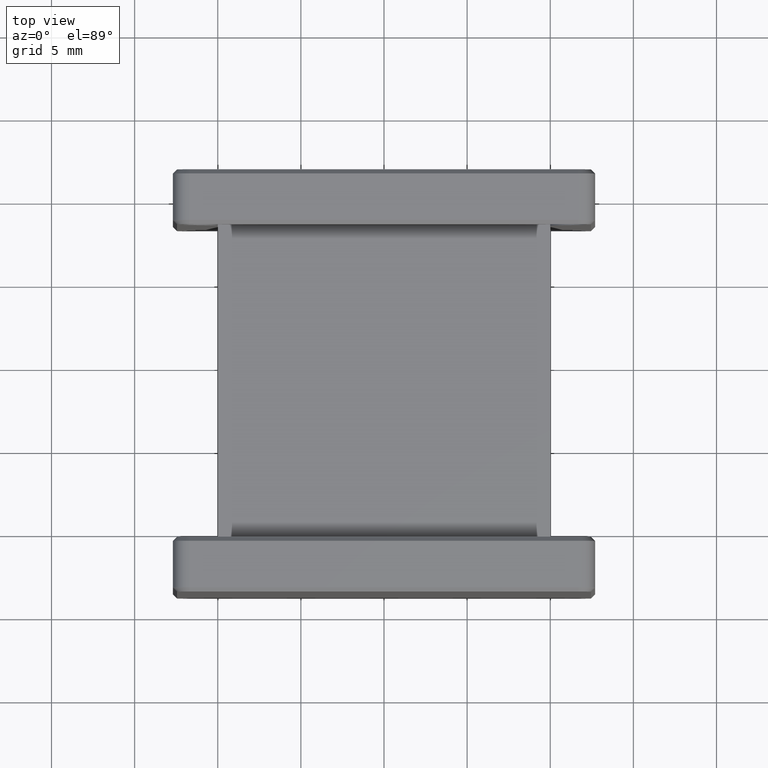
[diagram: clean part render]
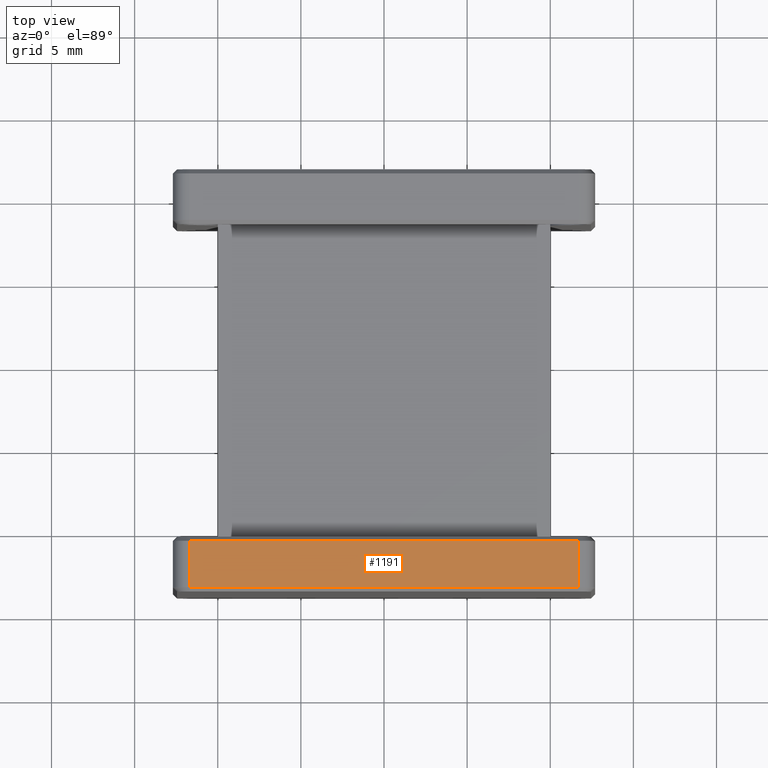
[diagram: same view with one face highlighted and labeled with its STEP entity id]
A machine part, top view. The second image highlights one B-rep face of the part: STEP entity #1191.
In plain terms, the highlighted planar face has unit normal (0, 0, -1).
Its self-contained STEP definition (entity closure, byte-faithful):
#53 = DIRECTION ( 'NONE',  ( -0.000000000000000000, -1.000000000000000000, -0.000000000000000000 ) ) ;
#70 = LINE ( 'NONE', #1001, #4172 ) ;
#163 = ORIENTED_EDGE ( 'NONE', *, *, #1609, .T. ) ;
#171 = FACE_OUTER_BOUND ( 'NONE', #1041, .T. ) ;
#264 = CARTESIAN_POINT ( 'NONE',  ( 11.70000000000009344, -20.69999999999999929, 12.70000000000019647 ) ) ;
#439 = VECTOR ( 'NONE', #972, 1000.000000000000000 ) ;
#722 = EDGE_CURVE ( 'NONE', #2469, #2224, #3729, .T. ) ;
#757 = CARTESIAN_POINT ( 'NONE',  ( 12.70000000000019469, -23.74999999999999645, 12.70000000000019647 ) ) ;
#814 = LINE ( 'NONE', #1067, #1237 ) ;
#972 = DIRECTION ( 'NONE',  ( -1.000000000000000000, 0.000000000000000000, 0.000000000000000000 ) ) ;
#1001 = CARTESIAN_POINT ( 'NONE',  ( -11.70000000000010942, -23.74999999999999645, 12.70000000000019647 ) ) ;
#1041 = EDGE_LOOP ( 'NONE', ( #2879, #3727, #1607, #163 ) ) ;
#1067 = CARTESIAN_POINT ( 'NONE',  ( 11.70000000000009344, -23.49999999999999645, 12.70000000000019647 ) ) ;
#1191 = ADVANCED_FACE ( 'NONE', ( #171 ), #2126, .F. ) ;
#1237 = VECTOR ( 'NONE', #2124, 1000.000000000000000 ) ;
#1420 = CARTESIAN_POINT ( 'NONE',  ( 11.70000000000009344, -23.49999999999999645, 12.70000000000019647 ) ) ;
#1470 = EDGE_CURVE ( 'NONE', #1767, #2930, #70, .T. ) ;
#1504 = CARTESIAN_POINT ( 'NONE',  ( -11.70000000000010942, -23.49999999999999645, 12.70000000000019647 ) ) ;
#1607 = ORIENTED_EDGE ( 'NONE', *, *, #1470, .T. ) ;
#1609 = EDGE_CURVE ( 'NONE', #2930, #2469, #814, .T. ) ;
#1767 = VERTEX_POINT ( 'NONE', #1888 ) ;
#1888 = CARTESIAN_POINT ( 'NONE',  ( -11.70000000000010942, -20.69999999999999929, 12.70000000000019647 ) ) ;
#2012 = CARTESIAN_POINT ( 'NONE',  ( 12.70000000000019469, -20.69999999999999929, 12.70000000000019647 ) ) ;
#2124 = DIRECTION ( 'NONE',  ( 1.000000000000000000, 0.000000000000000000, 0.000000000000000000 ) ) ;
#2126 = PLANE ( 'NONE',  #3376 ) ;
#2196 = DIRECTION ( 'NONE',  ( 0.000000000000000000, 0.000000000000000000, -1.000000000000000000 ) ) ;
#2224 = VERTEX_POINT ( 'NONE', #264 ) ;
#2469 = VERTEX_POINT ( 'NONE', #1420 ) ;
#2559 = DIRECTION ( 'NONE',  ( 0.000000000000000000, 1.000000000000000000, 0.000000000000000000 ) ) ;
#2879 = ORIENTED_EDGE ( 'NONE', *, *, #722, .T. ) ;
#2930 = VERTEX_POINT ( 'NONE', #1504 ) ;
#3037 = LINE ( 'NONE', #2012, #439 ) ;
#3118 = DIRECTION ( 'NONE',  ( 1.000000000000000000, 0.000000000000000000, 0.000000000000000000 ) ) ;
#3376 = AXIS2_PLACEMENT_3D ( 'NONE', #757, #2196, #3118 ) ;
#3660 = EDGE_CURVE ( 'NONE', #2224, #1767, #3037, .T. ) ;
#3727 = ORIENTED_EDGE ( 'NONE', *, *, #3660, .T. ) ;
#3729 = LINE ( 'NONE', #3835, #4132 ) ;
#3835 = CARTESIAN_POINT ( 'NONE',  ( 11.70000000000009344, -23.74999999999999645, 12.70000000000019647 ) ) ;
#4132 = VECTOR ( 'NONE', #2559, 1000.000000000000000 ) ;
#4172 = VECTOR ( 'NONE', #53, 1000.000000000000000 ) ;